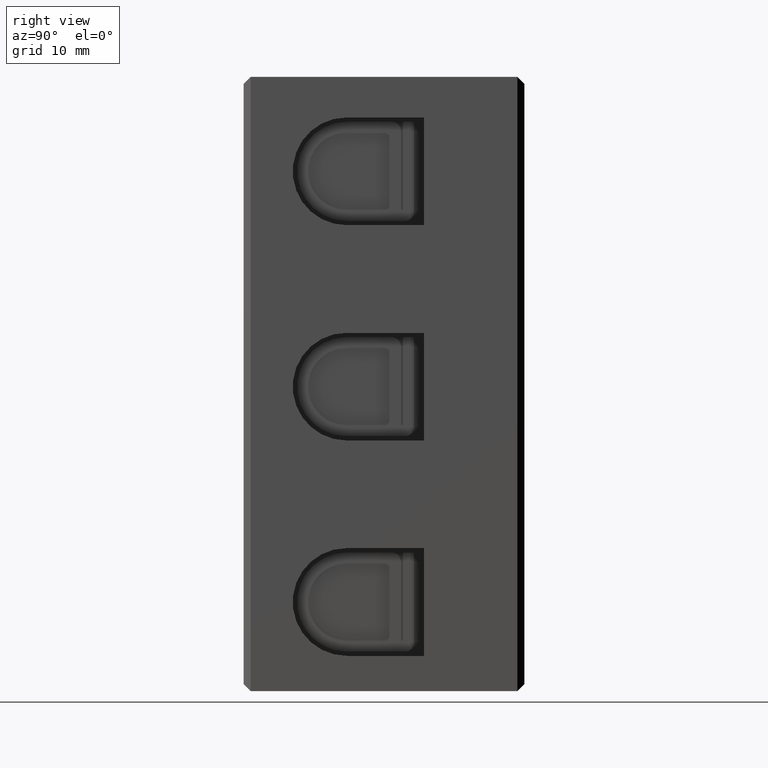
[diagram: clean part render]
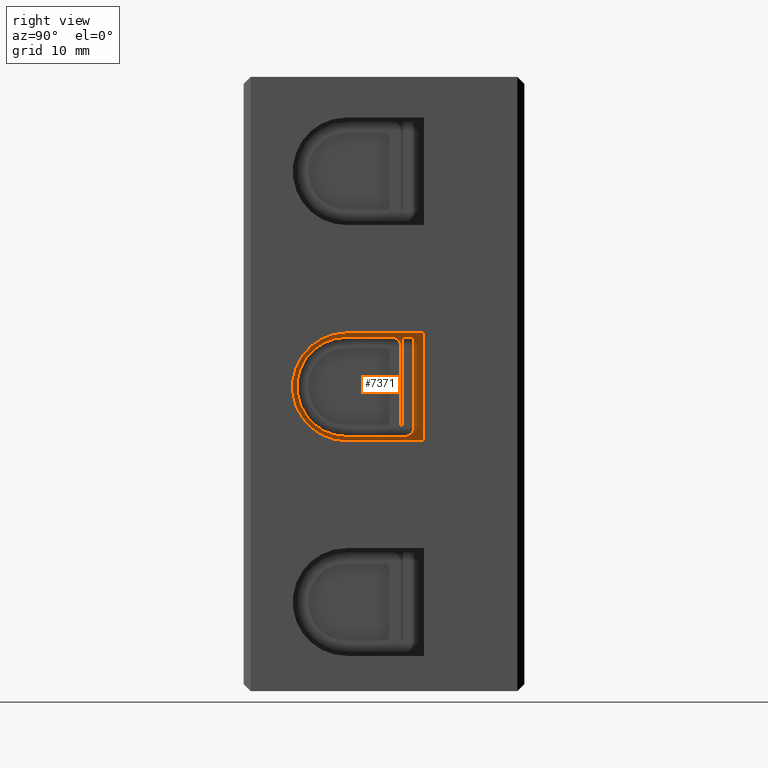
[diagram: same view with one face highlighted and labeled with its STEP entity id]
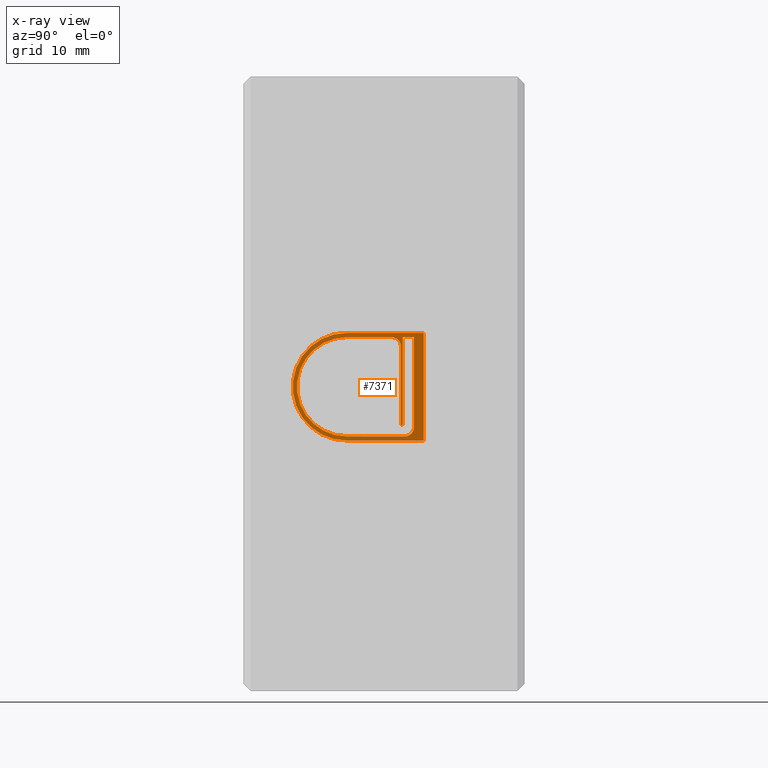
[diagram: x-ray of the same camera — body ghosted, the highlighted face saturated]
A machine part, right view. The second image highlights one B-rep face of the part: STEP entity #7371.
The next image is the same camera in x-ray: the body ghosted, the highlighted face saturated — about 0% of this face is hidden behind the body in this view.
In plain terms, the highlighted planar face has unit normal (1, 0, -0).
Its self-contained STEP definition (entity closure, byte-faithful):
#1019 = CARTESIAN_POINT ( 'NONE',  ( 24.60000000000017200, 15.80000000000000100, 37.80000000000000400 ) ) ;
#1021 = CARTESIAN_POINT ( 'NONE',  ( 24.60000000000016800, 19.24999999999999600, 34.79999999999985500 ) ) ;
#1029 = CARTESIAN_POINT ( 'NONE',  ( 24.60000000000017200, 16.80000000000000100, 28.39999999999999500 ) ) ;
#1030 = CARTESIAN_POINT ( 'NONE',  ( 24.60000000000017200, 17.00000000000000000, 28.39999999999999500 ) ) ;
#1034 = CARTESIAN_POINT ( 'NONE',  ( 24.60000000000017200, 11.00000000000000000, 38.25000000000000000 ) ) ;
#1043 = CARTESIAN_POINT ( 'NONE',  ( 24.60000000000017200, 17.19999999999999900, 27.20000000000001000 ) ) ;
#1062 = CARTESIAN_POINT ( 'NONE',  ( 24.60000000000017600, 11.00000000000000000, 27.19999999999999600 ) ) ;
#1063 = CARTESIAN_POINT ( 'NONE',  ( 24.60000000000016800, 19.24999999999999600, 30.80000000000016800 ) ) ;
#1071 = CARTESIAN_POINT ( 'NONE',  ( 24.60000000000017200, 17.00000000000000000, 37.80000000000000400 ) ) ;
#1075 = CARTESIAN_POINT ( 'NONE',  ( 24.60000000000017200, 18.19999999999999900, 28.20000000000000600 ) ) ;
#1077 = CARTESIAN_POINT ( 'NONE',  ( 24.60000000000016800, 19.24999999999999600, 38.25000000000000000 ) ) ;
#1078 = CARTESIAN_POINT ( 'NONE',  ( 24.60000000000017600, 11.00000000000000000, 37.80000000000001100 ) ) ;
#1102 = CARTESIAN_POINT ( 'NONE',  ( 24.60000000000017200, 18.19999999999999900, 37.80000000000000400 ) ) ;
#1104 = CARTESIAN_POINT ( 'NONE',  ( 24.60000000000017200, 16.80000000000000100, 36.80000000000000400 ) ) ;
#1158 = CARTESIAN_POINT ( 'NONE',  ( 24.60000000000016500, 19.24999999999999600, 26.74999999999999600 ) ) ;
#1174 = CARTESIAN_POINT ( 'NONE',  ( 24.60000000000016800, 11.00000000000000000, 26.74999999999999600 ) ) ;
#1565 = EDGE_CURVE ( 'NONE', #9120, #9136, #3413, .T. ) ;
#1636 = EDGE_CURVE ( 'NONE', #9099, #9092, #3648, .T. ) ;
#1638 = EDGE_CURVE ( 'NONE', #9116, #9115, #3636, .T. ) ;
#1641 = EDGE_CURVE ( 'NONE', #9115, #9209, #8631, .T. ) ;
#1688 = EDGE_CURVE ( 'NONE', #9114, #9170, #1925, .T. ) ;
#1691 = EDGE_CURVE ( 'NONE', #9207, #9120, #1927, .T. ) ;
#1700 = EDGE_CURVE ( 'NONE', #9105, #9102, #8703, .T. ) ;
#1704 = EDGE_CURVE ( 'NONE', #9112, #9104, #8682, .T. ) ;
#1709 = EDGE_CURVE ( 'NONE', #9136, #9116, #2022, .T. ) ;
#1714 = EDGE_CURVE ( 'NONE', #9209, #9207, #2023, .T. ) ;
#1716 = EDGE_CURVE ( 'NONE', #9170, #9107, #8659, .T. ) ;
#1717 = EDGE_CURVE ( 'NONE', #9102, #9112, #2030, .T. ) ;
#1718 = EDGE_CURVE ( 'NONE', #9104, #9150, #2007, .T. ) ;
#1720 = EDGE_CURVE ( 'NONE', #9150, #9099, #1998, .T. ) ;
#1743 = EDGE_CURVE ( 'NONE', #9107, #9105, #2104, .T. ) ;
#1746 = EDGE_CURVE ( 'NONE', #9092, #9114, #2108, .T. ) ;
#1921 = CARTESIAN_POINT ( 'NONE',  ( 24.60000000000017200, 16.80000000000000100, -24.23300584043050400 ) ) ;
#1925 = LINE ( 'NONE', #1921, #8665 ) ;
#1927 = LINE ( 'NONE', #1934, #8667 ) ;
#1934 = CARTESIAN_POINT ( 'NONE',  ( 24.60000000000016500, 19.24999999999999600, 26.74999999999998900 ) ) ;
#1948 = DIRECTION ( 'NONE',  ( 0.0000000000000000000, 0.0000000000000000000, 1.000000000000000000 ) ) ;
#1959 = CARTESIAN_POINT ( 'NONE',  ( 24.60000000000017600, 11.00000000000000000, 32.50000000000000000 ) ) ;
#1960 = DIRECTION ( 'NONE',  ( 1.000000000000000000, 2.346586625918115700E-016, -0.0000000000000000000 ) ) ;
#1966 = DIRECTION ( 'NONE',  ( 0.0000000000000000000, 1.000000000000000000, 0.0000000000000000000 ) ) ;
#1973 = CARTESIAN_POINT ( 'NONE',  ( 24.60000000000017200, 17.19999999999999900, 28.20000000000000600 ) ) ;
#1976 = DIRECTION ( 'NONE',  ( 1.000000000000000000, 2.346586625918115700E-016, -0.0000000000000000000 ) ) ;
#1977 = DIRECTION ( 'NONE',  ( 0.0000000000000000000, 1.000000000000000000, 0.0000000000000000000 ) ) ;
#1991 = DIRECTION ( 'NONE',  ( 0.0000000000000000000, -0.0000000000000000000, 1.000000000000000000 ) ) ;
#1995 = CARTESIAN_POINT ( 'NONE',  ( 24.60000000000017200, 15.80000000000000100, 36.80000000000000400 ) ) ;
#1998 = LINE ( 'NONE', #2003, #8708 ) ;
#2002 = DIRECTION ( 'NONE',  ( 0.0000000000000000000, 0.0000000000000000000, 1.000000000000000000 ) ) ;
#2003 = CARTESIAN_POINT ( 'NONE',  ( 24.60000000000017200, 19.24999999999999600, 37.80000000000000400 ) ) ;
#2007 = LINE ( 'NONE', #2036, #8663 ) ;
#2008 = CARTESIAN_POINT ( 'NONE',  ( 24.60000000000017200, 19.24999999999999600, 27.20000000000001000 ) ) ;
#2010 = DIRECTION ( 'NONE',  ( 0.0000000000000000000, -0.0000000000000000000, 1.000000000000000000 ) ) ;
#2011 = DIRECTION ( 'NONE',  ( 1.000000000000000000, 2.346586625918115700E-016, -0.0000000000000000000 ) ) ;
#2013 = CARTESIAN_POINT ( 'NONE',  ( 24.60000000000017200, 19.24999999999999600, 26.74999999999998900 ) ) ;
#2022 = LINE ( 'NONE', #2013, #8711 ) ;
#2023 = LINE ( 'NONE', #2024, #8661 ) ;
#2024 = CARTESIAN_POINT ( 'NONE',  ( 24.60000000000016500, 11.00000000000000000, 26.74999999999999600 ) ) ;
#2028 = DIRECTION ( 'NONE',  ( 0.0000000000000000000, 1.000000000000000000, 0.0000000000000000000 ) ) ;
#2030 = LINE ( 'NONE', #2008, #8662 ) ;
#2034 = DIRECTION ( 'NONE',  ( -2.346586625918115700E-016, 1.000000000000000000, 2.873739800352607800E-032 ) ) ;
#2035 = DIRECTION ( 'NONE',  ( 0.0000000000000000000, 1.000000000000000000, 0.0000000000000000000 ) ) ;
#2036 = CARTESIAN_POINT ( 'NONE',  ( 24.60000000000017200, 18.19999999999999900, -24.23300584043050400 ) ) ;
#2084 = DIRECTION ( 'NONE',  ( 2.346586625918115700E-016, -1.000000000000000000, -2.873739800352607800E-032 ) ) ;
#2087 = CARTESIAN_POINT ( 'NONE',  ( 24.60000000000017200, 19.25000000000008500, 37.79999999999999700 ) ) ;
#2090 = CARTESIAN_POINT ( 'NONE',  ( 24.60000000000017200, 19.24999999999999600, 28.40000000000000200 ) ) ;
#2104 = LINE ( 'NONE', #2087, #7717 ) ;
#2108 = LINE ( 'NONE', #2090, #7702 ) ;
#2115 = DIRECTION ( 'NONE',  ( 2.346586625918115700E-016, -1.000000000000000000, -2.873739800352607800E-032 ) ) ;
#2116 = DIRECTION ( 'NONE',  ( 2.346586625918115700E-016, -1.000000000000000000, 1.445602896647338500E-015 ) ) ;
#3413 = LINE ( 'NONE', #3418, #8496 ) ;
#3418 = CARTESIAN_POINT ( 'NONE',  ( 24.60000000000017200, 19.24999999999999600, -24.23300584043050400 ) ) ;
#3425 = DIRECTION ( 'NONE',  ( 0.0000000000000000000, 0.0000000000000000000, 1.000000000000000000 ) ) ;
#3636 = LINE ( 'NONE', #3661, #8650 ) ;
#3639 = DIRECTION ( 'NONE',  ( -0.0000000000000000000, -1.000000000000000000, -0.0000000000000000000 ) ) ;
#3640 = DIRECTION ( 'NONE',  ( 0.0000000000000000000, 0.0000000000000000000, 1.000000000000000000 ) ) ;
#3648 = LINE ( 'NONE', #3659, #8627 ) ;
#3651 = CARTESIAN_POINT ( 'NONE',  ( 24.60000000000017200, 11.00000000000000000, 32.50000000000000000 ) ) ;
#3653 = DIRECTION ( 'NONE',  ( 0.0000000000000000000, 0.0000000000000000000, -1.000000000000000000 ) ) ;
#3659 = CARTESIAN_POINT ( 'NONE',  ( 24.60000000000017200, 17.00000000000000000, -24.23300584043050400 ) ) ;
#3661 = CARTESIAN_POINT ( 'NONE',  ( 24.60000000000017200, 19.24999999999999600, 38.25000000000000000 ) ) ;
#3663 = DIRECTION ( 'NONE',  ( 1.000000000000000000, -0.0000000000000000000, -1.224646799147353200E-016 ) ) ;
#4177 = EDGE_LOOP ( 'NONE', ( #6101, #8757, #8753, #8769, #6062, #6099 ) ) ;
#4275 = EDGE_LOOP ( 'NONE', ( #9551, #9552, #9574, #9537, #9547, #6093, #8755, #6108, #6109, #8761 ) ) ;
#6062 = ORIENTED_EDGE ( 'NONE', *, *, #1565, .T. ) ;
#6093 = ORIENTED_EDGE ( 'NONE', *, *, #1717, .F. ) ;
#6099 = ORIENTED_EDGE ( 'NONE', *, *, #1709, .T. ) ;
#6101 = ORIENTED_EDGE ( 'NONE', *, *, #1638, .T. ) ;
#6108 = ORIENTED_EDGE ( 'NONE', *, *, #1743, .F. ) ;
#6109 = ORIENTED_EDGE ( 'NONE', *, *, #1716, .F. ) ;
#7371 = ADVANCED_FACE ( 'NONE', ( #9863, #9869 ), #9857, .T. ) ;
#7702 = VECTOR ( 'NONE', #2115, 1000.000000000000000 ) ;
#7717 = VECTOR ( 'NONE', #2116, 1000.000000000000000 ) ;
#8235 = AXIS2_PLACEMENT_3D ( 'NONE', #9830, #9872, #9826 ) ;
#8496 = VECTOR ( 'NONE', #3425, 1000.000000000000000 ) ;
#8612 = AXIS2_PLACEMENT_3D ( 'NONE', #3651, #3663, #3640 ) ;
#8627 = VECTOR ( 'NONE', #3653, 1000.000000000000000 ) ;
#8631 = CIRCLE ( 'NONE', #8612, 5.749999999999998200 ) ;
#8650 = VECTOR ( 'NONE', #3639, 1000.000000000000000 ) ;
#8659 = CIRCLE ( 'NONE', #8704, 1.000000000000000900 ) ;
#8661 = VECTOR ( 'NONE', #2028, 1000.000000000000000 ) ;
#8662 = VECTOR ( 'NONE', #2034, 1000.000000000000000 ) ;
#8663 = VECTOR ( 'NONE', #2002, 1000.000000000000000 ) ;
#8665 = VECTOR ( 'NONE', #1948, 1000.000000000000000 ) ;
#8667 = VECTOR ( 'NONE', #1991, 1000.000000000000000 ) ;
#8682 = CIRCLE ( 'NONE', #8691, 1.000000000000000900 ) ;
#8691 = AXIS2_PLACEMENT_3D ( 'NONE', #1973, #1976, #1977 ) ;
#8697 = AXIS2_PLACEMENT_3D ( 'NONE', #1959, #1960, #1966 ) ;
#8703 = CIRCLE ( 'NONE', #8697, 5.300000000000002500 ) ;
#8704 = AXIS2_PLACEMENT_3D ( 'NONE', #1995, #2011, #2035 ) ;
#8708 = VECTOR ( 'NONE', #2084, 1000.000000000000000 ) ;
#8711 = VECTOR ( 'NONE', #2010, 1000.000000000000000 ) ;
#8753 = ORIENTED_EDGE ( 'NONE', *, *, #1714, .T. ) ;
#8755 = ORIENTED_EDGE ( 'NONE', *, *, #1700, .F. ) ;
#8757 = ORIENTED_EDGE ( 'NONE', *, *, #1641, .T. ) ;
#8761 = ORIENTED_EDGE ( 'NONE', *, *, #1688, .F. ) ;
#8769 = ORIENTED_EDGE ( 'NONE', *, *, #1691, .T. ) ;
#9092 = VERTEX_POINT ( 'NONE', #1030 ) ;
#9099 = VERTEX_POINT ( 'NONE', #1071 ) ;
#9102 = VERTEX_POINT ( 'NONE', #1062 ) ;
#9104 = VERTEX_POINT ( 'NONE', #1075 ) ;
#9105 = VERTEX_POINT ( 'NONE', #1078 ) ;
#9107 = VERTEX_POINT ( 'NONE', #1019 ) ;
#9112 = VERTEX_POINT ( 'NONE', #1043 ) ;
#9114 = VERTEX_POINT ( 'NONE', #1029 ) ;
#9115 = VERTEX_POINT ( 'NONE', #1034 ) ;
#9116 = VERTEX_POINT ( 'NONE', #1077 ) ;
#9120 = VERTEX_POINT ( 'NONE', #1063 ) ;
#9136 = VERTEX_POINT ( 'NONE', #1021 ) ;
#9150 = VERTEX_POINT ( 'NONE', #1102 ) ;
#9170 = VERTEX_POINT ( 'NONE', #1104 ) ;
#9207 = VERTEX_POINT ( 'NONE', #1158 ) ;
#9209 = VERTEX_POINT ( 'NONE', #1174 ) ;
#9537 = ORIENTED_EDGE ( 'NONE', *, *, #1718, .F. ) ;
#9547 = ORIENTED_EDGE ( 'NONE', *, *, #1704, .F. ) ;
#9551 = ORIENTED_EDGE ( 'NONE', *, *, #1746, .F. ) ;
#9552 = ORIENTED_EDGE ( 'NONE', *, *, #1636, .F. ) ;
#9574 = ORIENTED_EDGE ( 'NONE', *, *, #1720, .F. ) ;
#9826 = DIRECTION ( 'NONE',  ( -2.346586625918115700E-016, 1.000000000000000000, 0.0000000000000000000 ) ) ;
#9830 = CARTESIAN_POINT ( 'NONE',  ( 24.60000000000017200, 19.24999999999999600, -24.23300584043050400 ) ) ;
#9857 = PLANE ( 'NONE',  #8235 ) ;
#9863 = FACE_BOUND ( 'NONE', #4275, .T. ) ;
#9869 = FACE_OUTER_BOUND ( 'NONE', #4177, .T. ) ;
#9872 = DIRECTION ( 'NONE',  ( 1.000000000000000000, 2.346586625918115700E-016, -0.0000000000000000000 ) ) ;